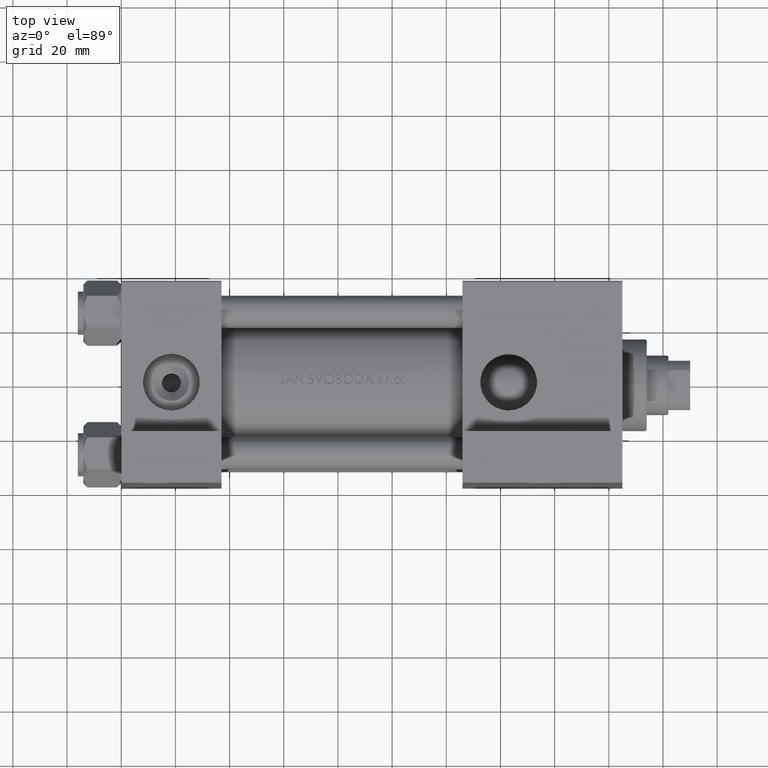
[diagram: clean part render]
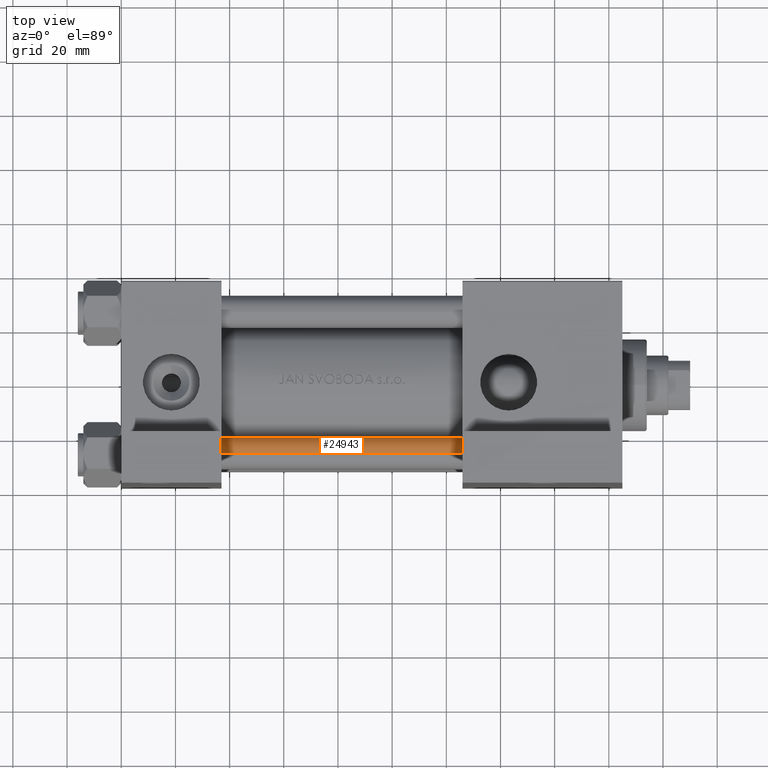
[diagram: same view with one face highlighted and labeled with its STEP entity id]
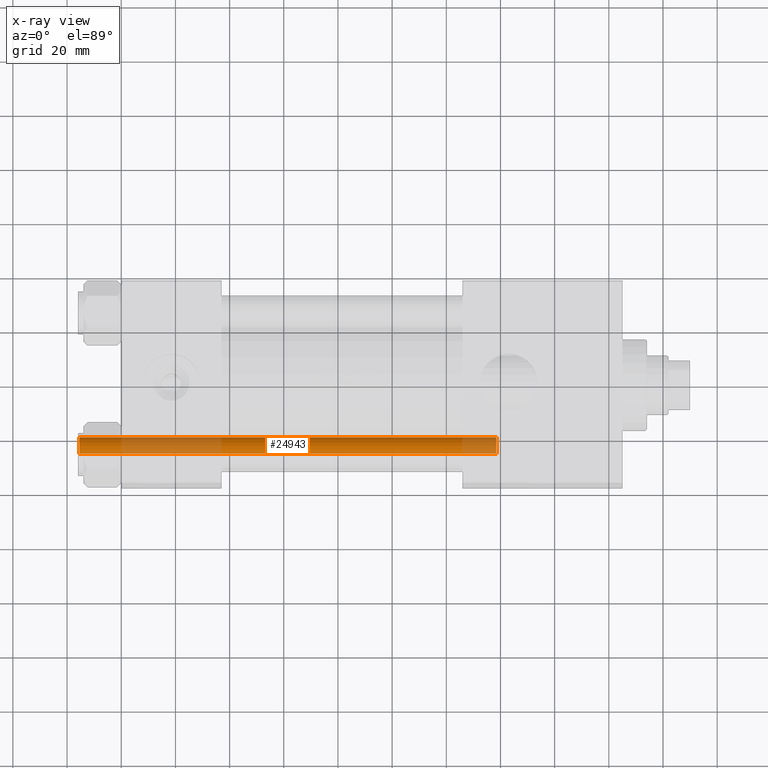
[diagram: x-ray of the same camera — body ghosted, the highlighted face saturated]
A machine part, top view. The second image highlights one B-rep face of the part: STEP entity #24943.
The next image is the same camera in x-ray: the body ghosted, the highlighted face saturated — about 32% of this face is hidden behind the body in this view.
In plain terms, the highlighted cylindrical surface (edge-blend (fillet) strip) has radius 6 mm, axis along (1, 0, 0).
Its self-contained STEP definition (entity closure, byte-faithful):
#497 = LINE ( 'NONE', #27372, #23038 ) ;
#1430 = EDGE_CURVE ( 'NONE', #37577, #47030, #497, .T. ) ;
#2079 = ORIENTED_EDGE ( 'NONE', *, *, #14233, .T. ) ;
#2294 = EDGE_LOOP ( 'NONE', ( #14878, #28741, #35798, #2079 ) ) ;
#3248 = CARTESIAN_POINT ( 'NONE',  ( 6.000000000000000888, 7.347880794884120722E-16, 154.5000000000000000 ) ) ;
#5857 = CARTESIAN_POINT ( 'NONE',  ( 0.000000000000000000, 0.000000000000000000, 0.4999999999999726885 ) ) ;
#8123 = FACE_OUTER_BOUND ( 'NONE', #2294, .T. ) ;
#8537 = DIRECTION ( 'NONE',  ( -0.000000000000000000, -0.000000000000000000, -1.000000000000000000 ) ) ;
#9830 = DIRECTION ( 'NONE',  ( -0.000000000000000000, -0.000000000000000000, 1.000000000000000000 ) ) ;
#10890 = CYLINDRICAL_SURFACE ( 'NONE', #32715, 6.000000000000000888 ) ;
#11620 = DIRECTION ( 'NONE',  ( -1.000000000000000000, 0.000000000000000000, 0.000000000000000000 ) ) ;
#13003 = AXIS2_PLACEMENT_3D ( 'NONE', #46355, #16211, #42841 ) ;
#14233 = EDGE_CURVE ( 'NONE', #23663, #47030, #33696, .T. ) ;
#14411 = EDGE_CURVE ( 'NONE', #26547, #23663, #30953, .T. ) ;
#14878 = ORIENTED_EDGE ( 'NONE', *, *, #1430, .F. ) ;
#16211 = DIRECTION ( 'NONE',  ( 0.000000000000000000, 0.000000000000000000, -1.000000000000000000 ) ) ;
#21047 = DIRECTION ( 'NONE',  ( 1.000000000000000000, 0.000000000000000000, 0.000000000000000000 ) ) ;
#22557 = VECTOR ( 'NONE', #8537, 1000.000000000000000 ) ;
#23038 = VECTOR ( 'NONE', #42556, 1000.000000000000000 ) ;
#23663 = VERTEX_POINT ( 'NONE', #38616 ) ;
#24943 = ADVANCED_FACE ( 'NONE', ( #8123 ), #10890, .T. ) ;
#26075 = CARTESIAN_POINT ( 'NONE',  ( 0.000000000000000000, 0.000000000000000000, 155.0000000000000000 ) ) ;
#26547 = VERTEX_POINT ( 'NONE', #26931 ) ;
#26931 = CARTESIAN_POINT ( 'NONE',  ( -6.000000000000000888, 0.000000000000000000, 154.5000000000000000 ) ) ;
#27372 = CARTESIAN_POINT ( 'NONE',  ( 6.000000000000000888, 7.347880794884120722E-16, 155.0000000000000000 ) ) ;
#27952 = CARTESIAN_POINT ( 'NONE',  ( -6.000000000000000888, 0.000000000000000000, 155.0000000000000000 ) ) ;
#28741 = ORIENTED_EDGE ( 'NONE', *, *, #34708, .T. ) ;
#30953 = LINE ( 'NONE', #27952, #22557 ) ;
#32715 = AXIS2_PLACEMENT_3D ( 'NONE', #26075, #49005, #11620 ) ;
#33696 = CIRCLE ( 'NONE', #34503, 6.000000000000000888 ) ;
#34245 = CARTESIAN_POINT ( 'NONE',  ( 6.000000000000000888, 7.347880794884120722E-16, 0.4999999999999726885 ) ) ;
#34503 = AXIS2_PLACEMENT_3D ( 'NONE', #5857, #9830, #21047 ) ;
#34708 = EDGE_CURVE ( 'NONE', #37577, #26547, #45643, .T. ) ;
#35798 = ORIENTED_EDGE ( 'NONE', *, *, #14411, .T. ) ;
#37577 = VERTEX_POINT ( 'NONE', #3248 ) ;
#38616 = CARTESIAN_POINT ( 'NONE',  ( -6.000000000000000888, 0.000000000000000000, 0.4999999999999726885 ) ) ;
#42556 = DIRECTION ( 'NONE',  ( -0.000000000000000000, -0.000000000000000000, -1.000000000000000000 ) ) ;
#42841 = DIRECTION ( 'NONE',  ( 1.000000000000000000, 0.000000000000000000, 0.000000000000000000 ) ) ;
#45643 = CIRCLE ( 'NONE', #13003, 6.000000000000000888 ) ;
#46355 = CARTESIAN_POINT ( 'NONE',  ( 0.000000000000000000, 0.000000000000000000, 154.5000000000000000 ) ) ;
#47030 = VERTEX_POINT ( 'NONE', #34245 ) ;
#49005 = DIRECTION ( 'NONE',  ( -0.000000000000000000, -0.000000000000000000, -1.000000000000000000 ) ) ;